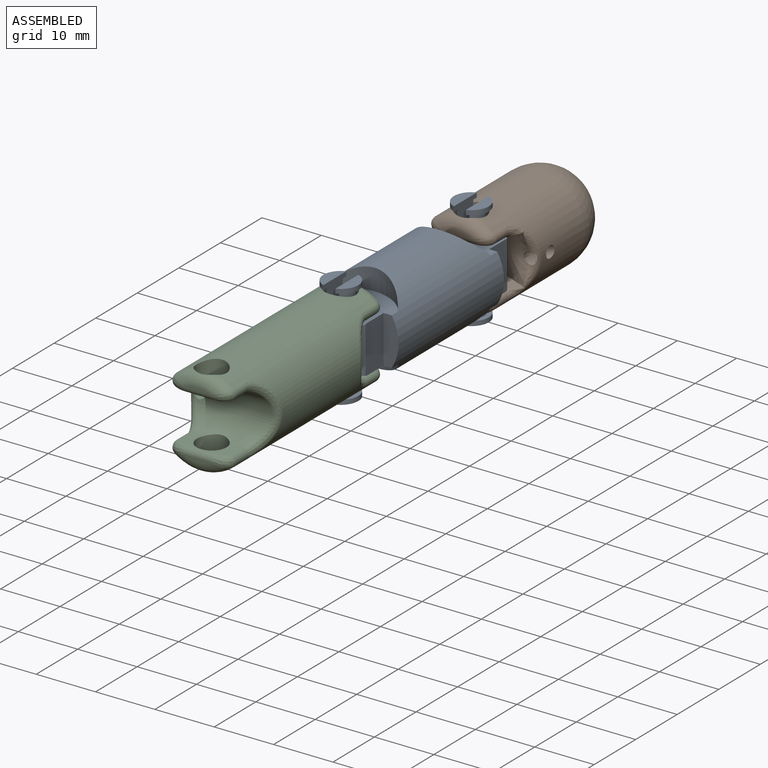
[diagram: assembled view]
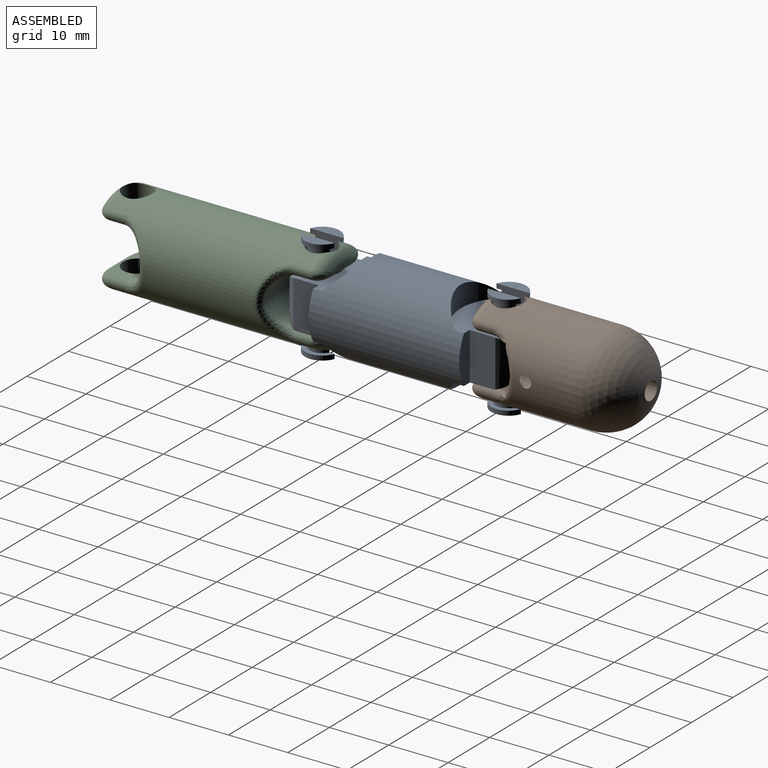
[diagram: assembled view, second angle]
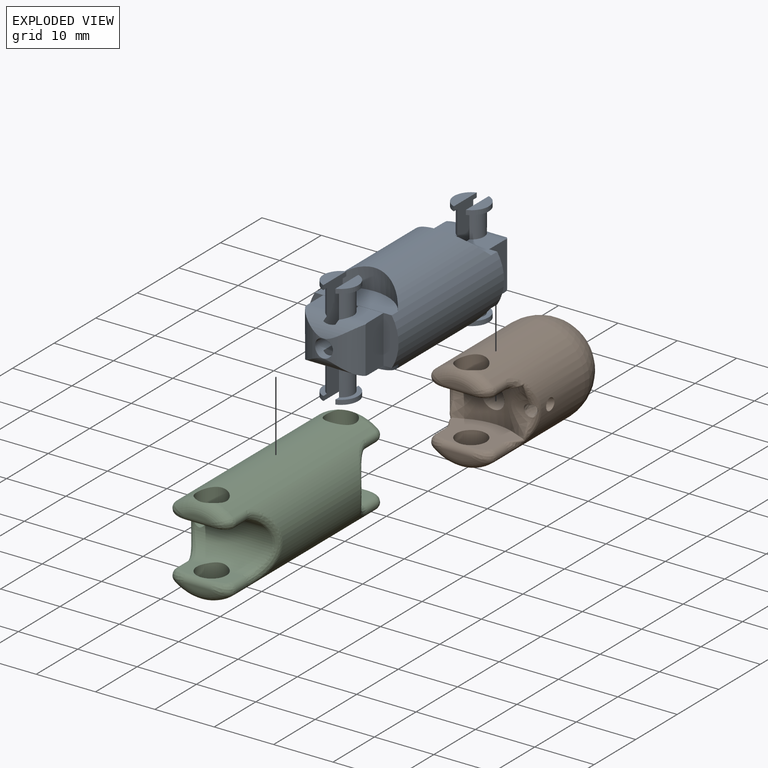
[diagram: exploded view]
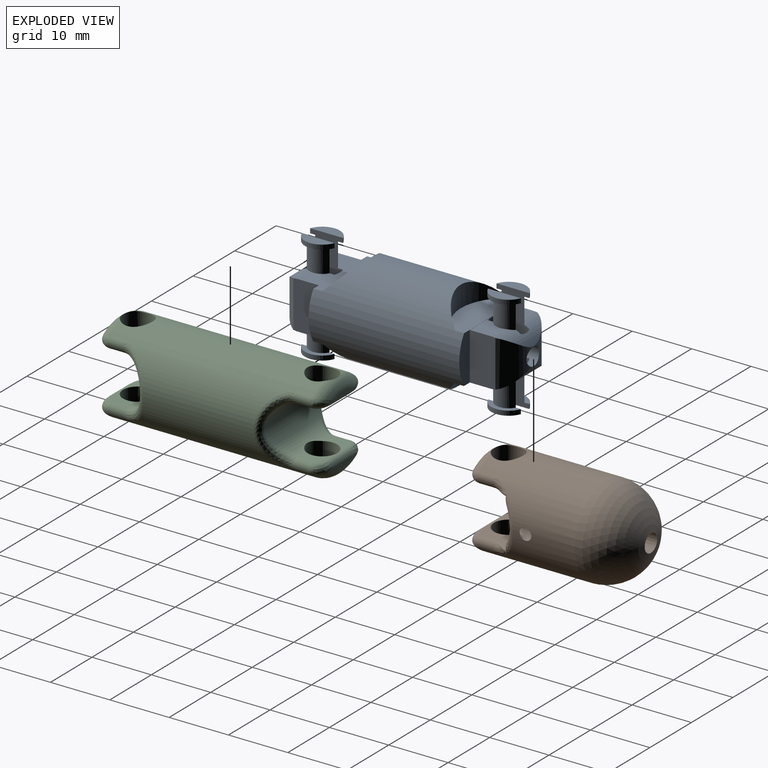
[diagram: exploded view, second angle]
ASSEMBLY  parts=3 mates=2
PART A: 75 faces, bbox 17.7x15.2x39.9 mm
  f0: plane 7.71x5.53mm, normal (0,-1,0), area 35.3mm2, adj f5,f12,f15,f17,f21,f31,f32,f34
  f1: plane 7.71x5.53mm, normal (0,1,0), area 35.3mm2, adj f4,f6,f10,f11,f15,f17,f21,f34
  f2: cylinder r=2.95mm len=5.53mm, axis (1,0,0), area 5.5mm2, adj f8,f9,f38
  f3: cylinder r=2.95mm len=5.53mm, axis (1,0,0), area 5.5mm2, adj f29,f30,f35
  f4: cylinder r=2.95mm len=5.53mm, axis (-1,0,0), area 5.5mm2, adj f1,f10,f11
  f5: cylinder r=2.95mm len=5.53mm, axis (-1,0,0), area 5.5mm2, adj f0,f31,f32
  f6: cylinder r=2.16mm len=4.3mm, axis (1,0,0), area 19.2mm2, adj f1,f10,f15,f21
  f7: cylinder r=2.16mm len=4.3mm, axis (-1,0,0), area 19.2mm2, adj f8,f14,f20,f38
  f8: plane 5.53x1.93mm, normal (-1,0,0), area 4.7mm2, adj f2,f7,f38
  f9: plane 5.53x1.93mm, normal (1,0,0), area 7.8mm2, adj f2,f38
  f10: plane 5.53x1.93mm, normal (1,0,0), area 4.7mm2, adj f1,f4,f6
  f11: plane 5.53x1.93mm, normal (-1,0,0), area 7.8mm2, adj f1,f4
  f12: cylinder r=2.16mm len=4.3mm, axis (1,0,0), area 19.2mm2, adj f0,f15,f21,f31
  f13: cylinder r=2.16mm len=4.3mm, axis (-1,0,0), area 19.2mm2, adj f14,f20,f29,f35
  f14: cylinder r=4mm len=10.16mm, axis (0,1,0), area 27.2mm2, adj f7,f13,f16,f20,f22,f28,f33,f35
  f15: cylinder r=4mm len=10.16mm, axis (0,1,0), area 27.2mm2, adj f0,f1,f6,f12,f16,f21,f22,f28
  f16: plane 8x4.32mm, normal (0,1,0), area 34.5mm2, adj f14,f15,f18,f20,f21,f28
  f17: cylinder r=1.51mm len=39.9mm, axis (0,0,1), area 328.7mm2, adj f0,f1,f28,f33,f34,f35,f36,f37
  f18: plane 15.24x8.03mm, normal (0,0,1), area 33.3mm2, adj f16,f19,f21,f22,f24,f26,f27
  f19: cylinder r=7.62mm len=25.4mm, axis (0,0,1), area 978.6mm2, adj f18,f23,f24,f25,f26,f56,f60,f61
  f20: plane 10.17x3.56mm, normal (1,0,0), area 24.8mm2, adj f7,f13,f14,f16,f22,f24,f35,f37
  f21: plane 10.16x3.56mm, normal (-1,0,0), area 24.8mm2, adj f0,f1,f6,f12,f15,f16,f18,f22
  f22: plane 8x4.32mm, normal (0,-1,0), area 34.5mm2, adj f14,f15,f18,f20,f21,f28
  f23: cylinder r=7.62mm len=12.97mm, axis (1,0,0), area 0mm2, adj f19,f24
  f24: plane 12.97x5.09mm, normal (1,0,0), area 52.1mm2, adj f18,f19,f20,f23
  f25: cylinder r=7.62mm len=12.94mm, axis (-1,0,0), area 0mm2, adj f19,f26
  f26: plane 12.94x5.08mm, normal (-1,0,0), area 52.1mm2, adj f18,f19,f25
  f27: cylinder r=0.76mm len=25.4mm, axis (0,0,1), area 121.6mm2, adj f18,f56
  f28: cylinder r=5.87mm len=10.16mm, axis (1,0,0), area 59.6mm2, adj f14,f15,f16,f17,f22
  f29: plane 5.53x1.93mm, normal (-1,0,0), area 4.7mm2, adj f3,f13,f35
  f30: plane 5.53x1.93mm, normal (1,0,0), area 7.8mm2, adj f3,f35
  f31: plane 5.53x1.93mm, normal (1,0,0), area 4.7mm2, adj f0,f5,f12
  f32: plane 5.53x1.93mm, normal (-1,0,0), area 7.8mm2, adj f0,f5
  f33: cylinder r=2.95mm len=2.22mm, axis (-1,0,0), area 4.2mm2, adj f14,f17,f35,f38
  f34: cylinder r=2.95mm len=2.21mm, axis (-1,0,0), area 4.6mm2, adj f0,f1,f15,f17
  f35: plane 7.71x5.53mm, normal (0,-1,0), area 35.3mm2, adj f3,f13,f14,f17,f20,f29,f30,f33
  f36: cylinder r=2.95mm len=2.88mm, axis (-1,0,0), area 6mm2, adj f0,f1,f17,f21
  f37: cylinder r=2.95mm len=2.88mm, axis (-1,0,0), area 5.6mm2, adj f17,f20,f35,f38
  f38: plane 7.71x5.53mm, normal (0,1,0), area 35.3mm2, adj f2,f7,f8,f9,f14,f17,f20,f33
  f39: plane 7.71x5.53mm, normal (0,-1,0), area 35.3mm2, adj f17,f44,f51,f54,f58,f67,f68,f70
  f40: plane 7.71x5.53mm, normal (0,1,0), area 35.3mm2, adj f17,f43,f45,f49,f50,f54,f58,f70
  f41: cylinder r=2.95mm len=5.53mm, axis (1,0,0), area 5.5mm2, adj f47,f48,f74
  f42: cylinder r=2.95mm len=5.53mm, axis (1,0,0), area 5.5mm2, adj f65,f66,f71
  f43: cylinder r=2.95mm len=5.53mm, axis (-1,0,0), area 5.5mm2, adj f40,f49,f50
  f44: cylinder r=2.95mm len=5.53mm, axis (-1,0,0), area 5.5mm2, adj f39,f67,f68
  f45: cylinder r=2.16mm len=4.3mm, axis (1,0,0), area 19.2mm2, adj f40,f49,f54,f58
  f46: cylinder r=2.16mm len=4.3mm, axis (-1,0,0), area 19.2mm2, adj f47,f53,f57,f74
  f47: plane 5.53x1.93mm, normal (-1,0,0), area 4.7mm2, adj f41,f46,f74
  f48: plane 5.53x1.93mm, normal (1,0,0), area 7.8mm2, adj f41,f74
  f49: plane 5.53x1.93mm, normal (1,0,0), area 4.7mm2, adj f40,f43,f45
  f50: plane 5.53x1.93mm, normal (-1,0,0), area 7.8mm2, adj f40,f43
  f51: cylinder r=2.16mm len=4.3mm, axis (1,0,0), area 19.2mm2, adj f39,f54,f58,f67
  f52: cylinder r=2.16mm len=4.3mm, axis (-1,0,0), area 19.2mm2, adj f53,f57,f65,f71
  f53: cylinder r=4mm len=10.16mm, axis (0,1,0), area 27.2mm2, adj f46,f52,f55,f57,f59,f64,f69,f71
  f54: cylinder r=4mm len=10.16mm, axis (0,1,0), area 27.2mm2, adj f39,f40,f45,f51,f55,f58,f59,f64
  f55: plane 8x4.32mm, normal (0,1,0), area 34.5mm2, adj f53,f54,f56,f57,f58,f64
  f56: plane 15.24x8.03mm, normal (0,0,-1), area 33.3mm2, adj f19,f27,f55,f58,f59,f61,f63
  f57: plane 10.17x3.56mm, normal (1,0,0), area 24.8mm2, adj f46,f52,f53,f55,f59,f61,f71,f73
  f58: plane 10.16x3.56mm, normal (-1,0,0), area 24.8mm2, adj f39,f40,f45,f51,f54,f55,f56,f59
  f59: plane 8x4.32mm, normal (0,-1,0), area 34.5mm2, adj f53,f54,f56,f57,f58,f64
  f60: cylinder r=7.62mm len=12.97mm, axis (1,0,0), area 0mm2, adj f19,f61
  f61: plane 12.97x5.09mm, normal (1,0,0), area 52.1mm2, adj f19,f56,f57,f60
  f62: cylinder r=7.62mm len=12.94mm, axis (-1,0,0), area 0mm2, adj f19,f63
  f63: plane 12.94x5.08mm, normal (-1,0,0), area 52.1mm2, adj f19,f56,f62
  f64: cylinder r=5.87mm len=10.16mm, axis (1,0,0), area 59.6mm2, adj f17,f53,f54,f55,f59
  f65: plane 5.53x1.93mm, normal (-1,0,0), area 4.7mm2, adj f42,f52,f71
  f66: plane 5.53x1.93mm, normal (1,0,0), area 7.8mm2, adj f42,f71
  f67: plane 5.53x1.93mm, normal (1,0,0), area 4.7mm2, adj f39,f44,f51
  f68: plane 5.53x1.93mm, normal (-1,0,0), area 7.8mm2, adj f39,f44
  f69: cylinder r=2.95mm len=2.22mm, axis (-1,0,0), area 4.2mm2, adj f17,f53,f71,f74
  f70: cylinder r=2.95mm len=2.21mm, axis (-1,0,0), area 4.6mm2, adj f17,f39,f40,f54
  f71: plane 7.71x5.53mm, normal (0,-1,0), area 35.3mm2, adj f17,f42,f52,f53,f57,f65,f66,f69
  f72: cylinder r=2.95mm len=2.88mm, axis (-1,0,0), area 6mm2, adj f17,f39,f40,f58
  f73: cylinder r=2.95mm len=2.88mm, axis (-1,0,0), area 5.6mm2, adj f17,f57,f71,f74
  f74: plane 7.71x5.53mm, normal (0,1,0), area 35.3mm2, adj f17,f41,f46,f47,f48,f53,f57,f69
PART B: 37 faces, bbox 17.6x16.5x27.8 mm
  f0: cylinder r=4mm len=3.43mm, axis (-1,0,0), area 4.3mm2, adj f18,f25,f27
  f1: cylinder r=2.5mm len=5mm, axis (0,-1,0), area 52.7mm2, adj f5,f7,f12
  f2: plane 5.13x0.62mm, normal (0,0,-1), area 2.1mm2, adj f11,f24
  f3: cone r=2mm half-angle=1deg, axis (0,0,-1), area 194.6mm2, adj f4,f26
  f4: sphere r=7.62mm, area 357.6mm2, adj f3,f5
  f5: cylinder r=7.62mm len=18mm, axis (0,0,-1), area 660.4mm2, adj f1,f4,f10,f11,f12,f16,f17,f18
  f6: plane 5.13x0.62mm, normal (0,0,-1), area 2.1mm2, adj f12,f13
  f7: plane 11.79x8mm, normal (0,-1,0), area 51.9mm2, adj f1,f13,f14,f15,f16,f17,f26,f27
  f8: plane 11.79x8mm, normal (0,1,0), area 51.9mm2, adj f10,f20,f21,f22,f23,f24,f26,f27
  f9: cylinder r=4mm len=3.43mm, axis (-1,0,0), area 5.4mm2, adj f19,f28
  f10: cylinder r=2.5mm len=5mm, axis (0,-1,0), area 52.7mm2, adj f5,f8,f11
  f11: torus R=5.62mm, axis (0,0,1), area 23.1mm2, adj f2,f5,f10,f22,f23
  f12: torus R=5.62mm, axis (0,0,1), area 23.1mm2, adj f1,f5,f6,f14,f15
  f13: cylinder r=1mm len=5.13mm, axis (-1,0,0), area 8.1mm2, adj f6,f7,f14,f15
  f14: bspline ~5.91x3.2mm, area 7.1mm2, adj f7,f12,f13,f16
  f15: bspline ~4.86x3.19mm, area 7.1mm2, adj f7,f12,f13,f17
  f16: cylinder r=1mm len=2.5mm, axis (0,0,-1), area 6.1mm2, adj f5,f7,f14,f18
  f17: cylinder r=1mm len=2.5mm, axis (0,0,-1), area 6.1mm2, adj f5,f7,f15,f19
  f18: bspline ~11.51x5.93mm, area 17.9mm2, adj f0,f5,f16,f20,f25,f33,f34,f35
  f19: bspline ~11.51x5.93mm, area 18.9mm2, adj f5,f9,f17,f21,f29,f30,f31,f32
  f20: cylinder r=1mm len=2.5mm, axis (0,0,-1), area 6.1mm2, adj f5,f8,f18,f22
  f21: cylinder r=1mm len=2.5mm, axis (0,0,-1), area 6.1mm2, adj f5,f8,f19,f23
  f22: bspline ~5.91x3.2mm, area 7.1mm2, adj f8,f11,f20,f24
  f23: bspline ~5.91x3.19mm, area 7.1mm2, adj f8,f11,f21,f24
  f24: cylinder r=1mm len=5.13mm, axis (1,0,0), area 8.1mm2, adj f2,f8,f22,f23
  f25: bspline ~5.49x4.79mm, area 25.5mm2, adj f0,f5,f18
  f26: cylinder r=10mm len=8.54mm, axis (0,-1,0), area 41.3mm2, adj f3,f7,f8,f27,f28
  f27: bspline ~11.65x6.41mm, area 19.9mm2, adj f0,f7,f8,f26,f33,f34,f35,f36
  f28: bspline ~11.79x6.03mm, area 19.9mm2, adj f7,f8,f9,f26,f29,f30,f31,f32
  f29: bspline ~3.18x2.18mm, area 1mm2, adj f7,f19,f28,f30
  f30: bspline ~2.97x0.98mm, area 0.5mm2, adj f19,f28,f29
  f31: bspline ~3.34x2.22mm, area 1mm2, adj f8,f19,f28,f32
  f32: bspline ~3.03x0.98mm, area 0.6mm2, adj f19,f28,f31
  f33: bspline ~3.18x2.18mm, area 1mm2, adj f8,f18,f27,f34
  f34: bspline ~2.97x0.98mm, area 0.5mm2, adj f18,f27,f33
  f35: bspline ~3.34x2.22mm, area 1mm2, adj f7,f18,f27,f36
  f36: bspline ~3.03x0.98mm, area 0.5mm2, adj f18,f27,f35
PART C: 44 faces, bbox 16.5x15.2x38.9 mm
  f0: plane 4.61x0.5mm, normal (0,0,1), area 1.5mm2, adj f8,f13
  f1: cylinder r=7.62mm len=34.1mm, axis (0,0,-1), area 1214.8mm2, adj f6,f7,f8,f9,f10,f12,f14,f17
  f2: plane 4.61x0.5mm, normal (0,0,1), area 1.5mm2, adj f9,f18
  f3: cylinder r=4.12mm len=13.24mm, axis (0,-1,0), area 129.9mm2, adj f4,f5,f6,f7,f12,f19,f43
  f4: plane 8.38x3.6mm, normal (1,0,0), area 14.3mm2, adj f3,f7,f14,f16,f18,f20,f21
  f5: plane 8.38x3.6mm, normal (-1,0,0), area 14.3mm2, adj f3,f6,f10,f11,f13,f15,f17
  f6: cylinder r=2.5mm len=5mm, axis (1,0,0), area 50.3mm2, adj f1,f3,f5,f8
  f7: cylinder r=2.5mm len=5mm, axis (1,0,0), area 51.3mm2, adj f1,f3,f4,f9
  f8: torus R=5.62mm, axis (0,0,1), area 21.4mm2, adj f0,f1,f6,f11,f15
  f9: torus R=5.62mm, axis (0,0,1), area 21.4mm2, adj f1,f2,f7,f16,f20
  f10: cylinder r=1mm len=2.6mm, axis (0,0,-1), area 6.4mm2, adj f1,f5,f11,f12
  f11: bspline ~5.43x3.27mm, area 7.3mm2, adj f5,f8,f10,f13
  f12: bspline ~11.8x5.12mm, area 30.7mm2, adj f1,f3,f10,f14,f43
  f13: cylinder r=1mm len=4.61mm, axis (0,-1,0), area 7.2mm2, adj f0,f5,f11,f15
  f14: cylinder r=1mm len=2.6mm, axis (0,0,-1), area 6.4mm2, adj f1,f4,f12,f16
  f15: bspline ~5.43x3.29mm, area 7.3mm2, adj f5,f8,f13,f17
  f16: bspline ~5.43x3.27mm, area 7.3mm2, adj f4,f9,f14,f18
  f17: cylinder r=1mm len=2.6mm, axis (0,0,-1), area 6.4mm2, adj f1,f5,f15,f19
  f18: cylinder r=1mm len=4.61mm, axis (0,1,0), area 7.2mm2, adj f2,f4,f16,f20
  f19: bspline ~11.8x6.06mm, area 30.7mm2, adj f1,f3,f17,f21
  f20: bspline ~5.43x3.29mm, area 7.3mm2, adj f4,f9,f18,f21
  f21: cylinder r=1mm len=2.6mm, axis (0,0,-1), area 6.4mm2, adj f1,f4,f19,f20
  f22: plane 4.61x0.5mm, normal (0,0,-1), area 1.5mm2, adj f29,f34
  f23: plane 4.61x0.5mm, normal (0,0,-1), area 1.5mm2, adj f30,f39
  f24: cylinder r=4.12mm len=13.24mm, axis (0,-1,0), area 129.9mm2, adj f25,f26,f27,f28,f33,f40,f43
  f25: plane 8.38x3.6mm, normal (1,0,0), area 14.3mm2, adj f24,f28,f35,f37,f39,f41,f42
  f26: plane 8.38x3.6mm, normal (-1,0,0), area 14.3mm2, adj f24,f27,f31,f32,f34,f36,f38
  f27: cylinder r=2.5mm len=5mm, axis (1,0,0), area 50.3mm2, adj f1,f24,f26,f29
  f28: cylinder r=2.5mm len=5mm, axis (1,0,0), area 51.3mm2, adj f1,f24,f25,f30
  f29: torus R=5.62mm, axis (0,0,-1), area 21.4mm2, adj f1,f22,f27,f32,f36
  f30: torus R=5.62mm, axis (0,0,-1), area 21.4mm2, adj f1,f23,f28,f37,f41
  f31: cylinder r=1mm len=2.6mm, axis (0,0,1), area 6.4mm2, adj f1,f26,f32,f33
  f32: bspline ~5.43x3.27mm, area 7.3mm2, adj f26,f29,f31,f34
  f33: bspline ~11.8x5.12mm, area 30.7mm2, adj f1,f24,f31,f35,f43
  f34: cylinder r=1mm len=4.61mm, axis (0,-1,0), area 7.2mm2, adj f22,f26,f32,f36
  f35: cylinder r=1mm len=2.6mm, axis (0,0,1), area 6.4mm2, adj f1,f25,f33,f37
  f36: bspline ~5.43x3.29mm, area 7.3mm2, adj f26,f29,f34,f38
  f37: bspline ~5.43x3.27mm, area 7.3mm2, adj f25,f30,f35,f39
  f38: cylinder r=1mm len=2.6mm, axis (0,0,1), area 6.4mm2, adj f1,f26,f36,f40
  f39: cylinder r=1mm len=4.61mm, axis (0,1,0), area 7.2mm2, adj f23,f25,f37,f41
  f40: bspline ~11.8x6.06mm, area 30.7mm2, adj f1,f24,f38,f42
  f41: bspline ~5.43x3.29mm, area 7.3mm2, adj f25,f30,f39,f42
  f42: cylinder r=1mm len=2.6mm, axis (0,0,1), area 6.4mm2, adj f1,f25,f40,f41
  f43: cylinder r=0.93mm len=20.66mm, axis (0,0,1), area 121.3mm2, adj f3,f12,f24,f33
PLACE A rot(axis=(-0.58,0.58,0.58),120deg) t=(-24.04,-14.06,28.68)mm
PLACE B rot(axis=(-1,0,0),90deg) t=(-18.96,-14.56,30.21)mm
PLACE C rot(axis=(0.58,-0.58,0.58),120deg) t=(-18.96,-58,30.19)mm
MATE slider B.f1 <-> A.f2  axis (0,0,-1) through (-18.96,-11.06,34.21)mm
MATE slider C.f27 <-> A.f41  axis (0,0,-1) through (-18.96,-42.46,34.31)mm
